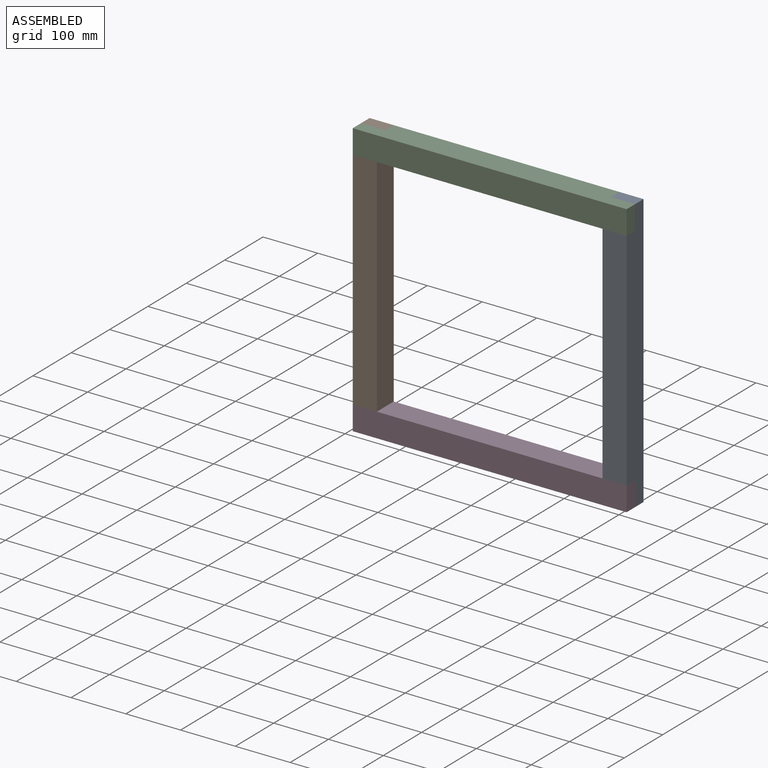
[diagram: assembled view]
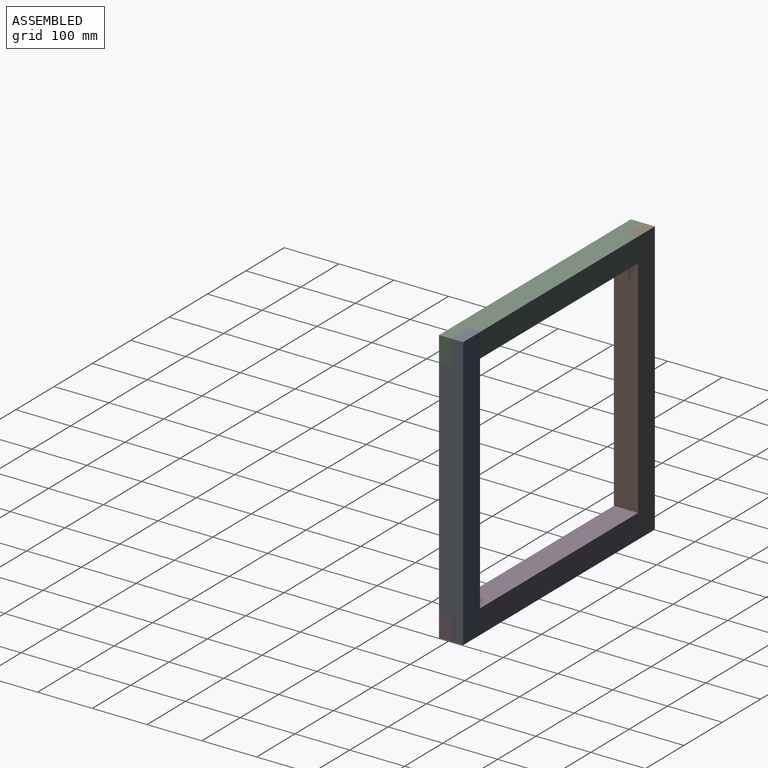
[diagram: assembled view, second angle]
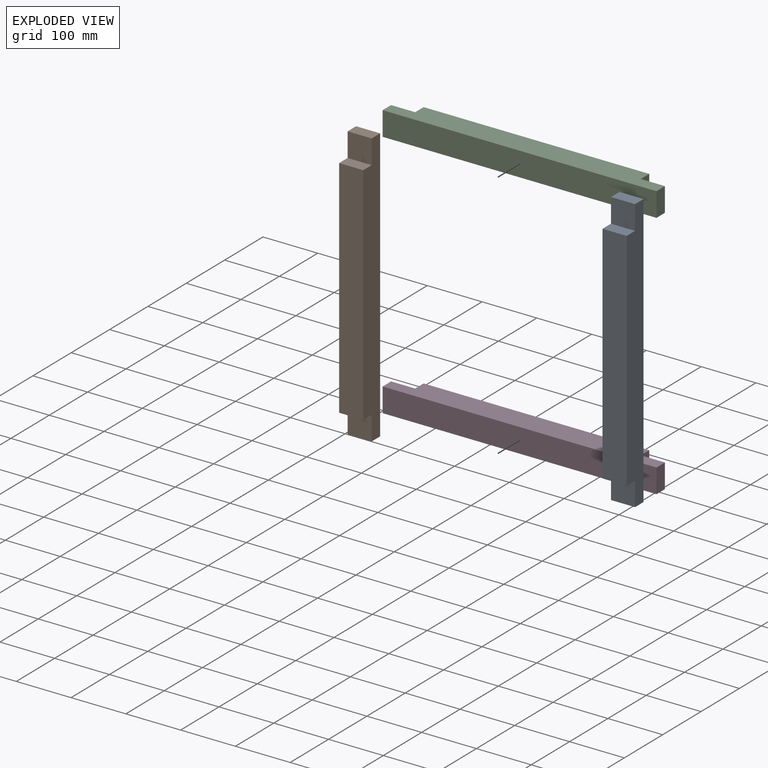
[diagram: exploded view]
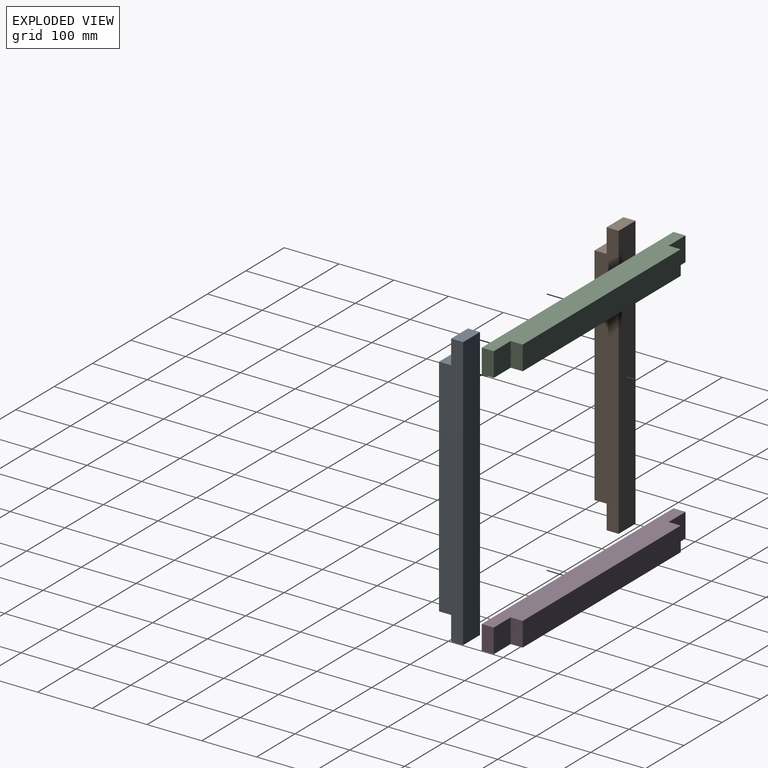
[diagram: exploded view, second angle]
ASSEMBLY  parts=4 mates=3
PART A: 10 faces, bbox 44x44x500 mm
  f0: plane 500x44mm, normal (-1,0,0), area 20064mm2, adj f1,f2,f3,f5,f6,f7,f8,f9
  f1: plane 412x44mm, normal (0,-1,0), area 18128mm2, adj f0,f4,f6,f8
  f2: plane 44x22mm, normal (0,0,1), area 968mm2, adj f0,f4,f5,f9
  f3: plane 44x22mm, normal (0,0,-1), area 968mm2, adj f0,f4,f5,f7
  f4: plane 500x44mm, normal (1,0,0), area 20064mm2, adj f1,f2,f3,f5,f6,f7,f8,f9
  f5: plane 500x44mm, normal (0,1,0), area 22000mm2, adj f0,f2,f3,f4
  f6: plane 44x22mm, normal (0,0,-1), area 968mm2, adj f0,f1,f4,f7
  f7: plane 44x44mm, normal (0,-1,0), area 1936mm2, adj f0,f3,f4,f6
  f8: plane 44x22mm, normal (0,0,1), area 968mm2, adj f0,f1,f4,f9
  f9: plane 44x44mm, normal (0,-1,0), area 1936mm2, adj f0,f2,f4,f8
PART B: same geometry as A
PART C: same geometry as A
PART D: same geometry as A
PLACE A t=(-126.57,139.23,-49.6)mm
PLACE B t=(-582.57,139.23,-49.6)mm
PLACE C rot(axis=(0.71,0,0.71),180deg) t=(-582.57,95.23,406.4)mm
PLACE D rot(axis=(0.71,0,0.71),180deg) t=(-582.57,95.23,-49.6)mm
MATE fastened B.f9 <-> C.f7  axis (0,-1,0) through (-560.57,117.23,428.4)mm
MATE fastened C.f9 <-> A.f9  axis (0,1,0) through (-104.57,117.23,428.4)mm
MATE fastened D.f9 <-> A.f7  axis (0,1,0) through (-104.57,117.23,-27.6)mm
